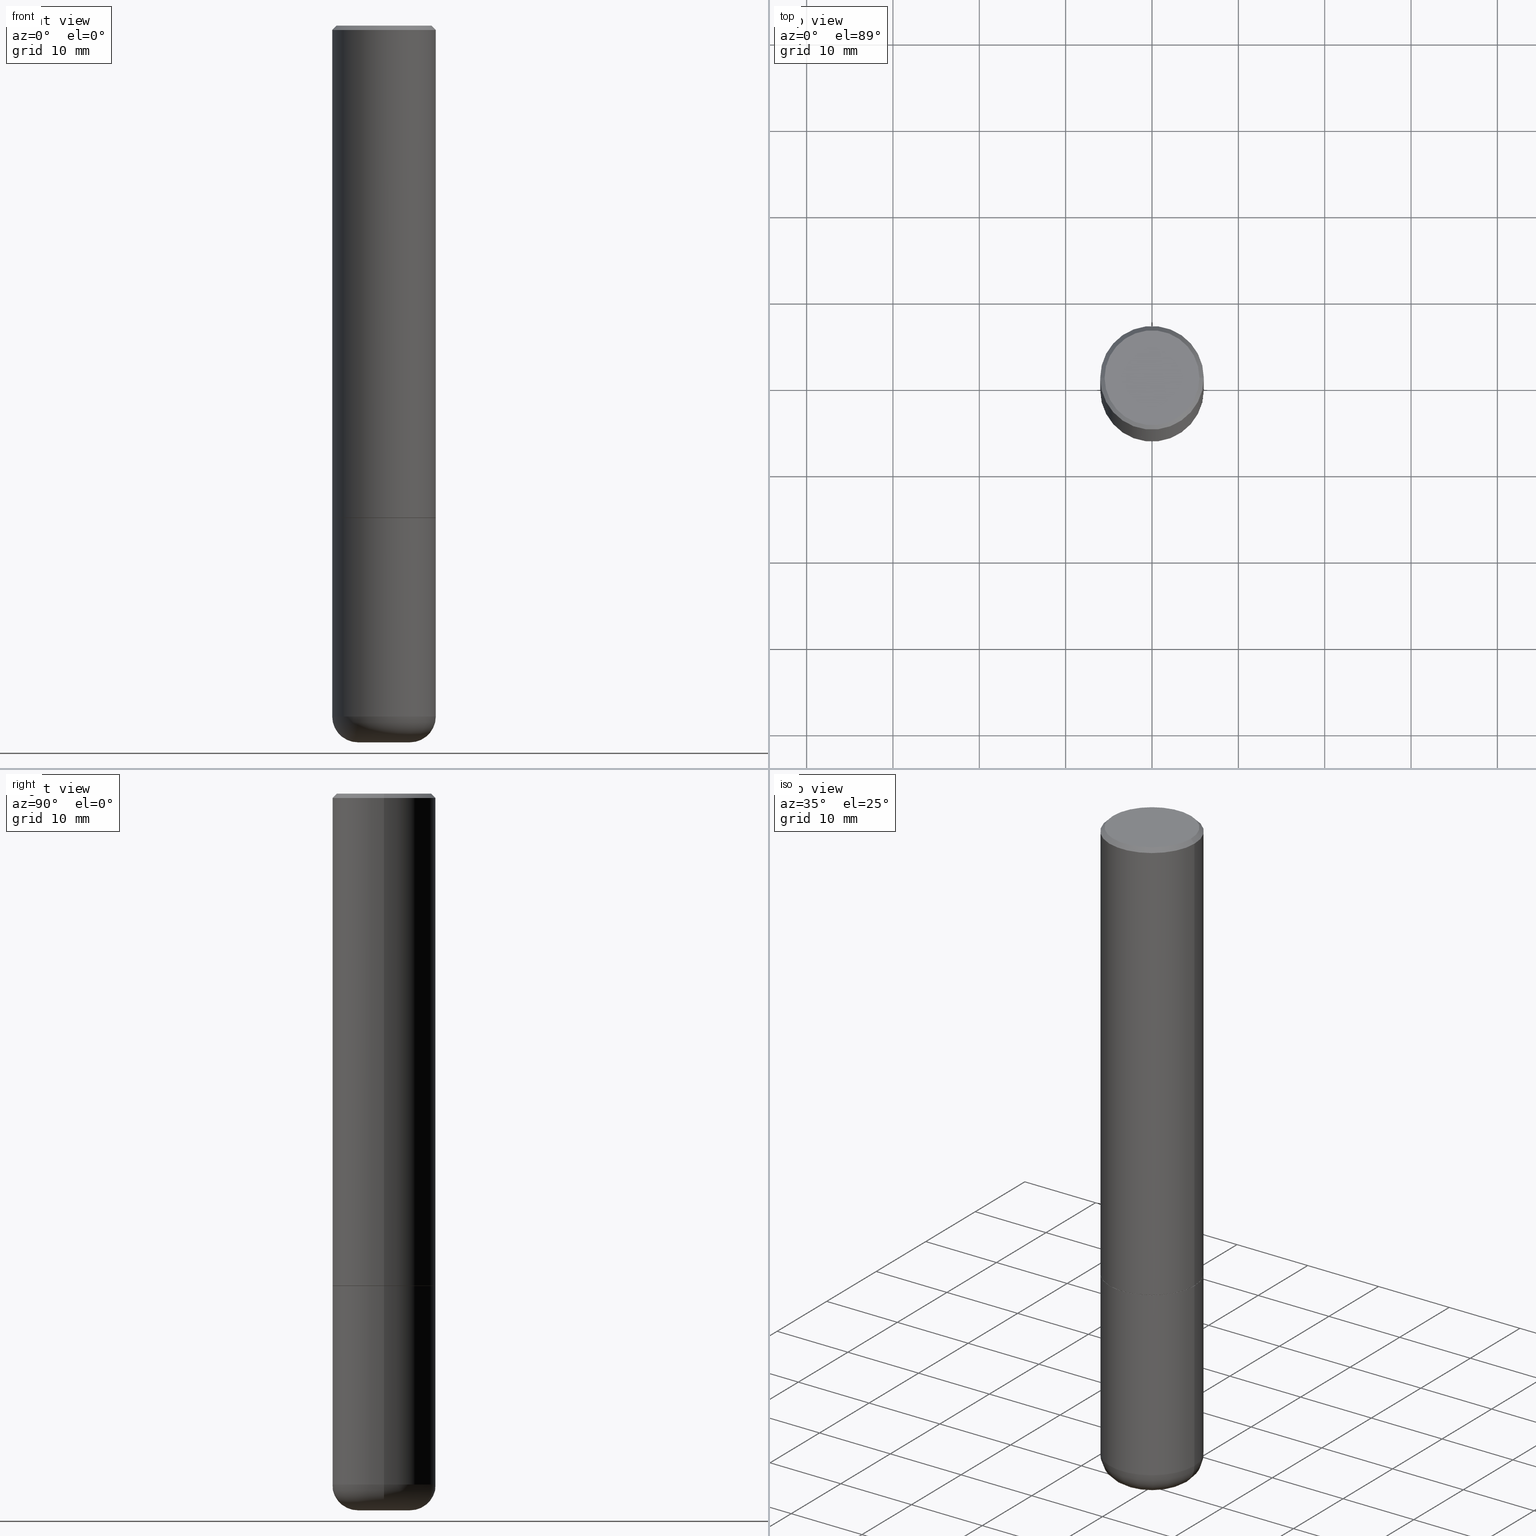
[diagram: canonical four-view strip — front | top / right | iso, engineering-drawing reading convention]
A machine part, canonical four-view strip (front | top / right | iso — engineering-drawing reading convention). The complete STEP part file that produces these views, byte-faithful:
ISO-10303-21;
HEADER;
FILE_DESCRIPTION (( 'STEP AP203' ),
    '1' );
FILE_NAME ('48015.STEP',
    '2024-03-06T19:45:24',
    ( '' ),
    ( '' ),
    'SwSTEP 2.0',
    'SolidWorks 2023',
    '' );
FILE_SCHEMA (( 'CONFIG_CONTROL_DESIGN' ));
ENDSEC;

DATA;
#1 = EDGE_CURVE ( 'NONE', #31, #139, #109, .T. ) ;
#2 = EDGE_LOOP ( 'NONE', ( #64, #72, #201, #124 ) ) ;
#3 = PERSON_AND_ORGANIZATION_ROLE ( 'design_owner' ) ;
#4 = VECTOR ( 'NONE', #347, 39.37007874015748143 ) ;
#5 = CARTESIAN_POINT ( 'NONE',  ( 0.2362000000000000210, -1.264614540928986883E-14, -3.149600000000000399 ) ) ;
#6 = ADVANCED_FACE ( 'NONE', ( #153 ), #406, .T. ) ;
#7 = ORIENTED_EDGE ( 'NONE', *, *, #1, .F. ) ;
#8 = CALENDAR_DATE ( 2024, 6, 3 ) ;
#9 = VERTEX_POINT ( 'NONE', #400 ) ;
#10 = EDGE_LOOP ( 'NONE', ( #332, #41, #320, #132 ) ) ;
#11 = DIRECTION ( 'NONE',  ( 1.000000000000000000, 0.000000000000000000, 0.000000000000000000 ) ) ;
#12 = CC_DESIGN_DATE_AND_TIME_ASSIGNMENT ( #14, #275, ( #196 ) ) ;
#13 = ORIENTED_EDGE ( 'NONE', *, *, #130, .F. ) ;
#14 = DATE_AND_TIME ( #409, #169 ) ;
#15 = DIRECTION ( 'NONE',  ( -1.000000000000000000, 6.982962677686265922E-15, -4.876176775795935793E-29 ) ) ;
#16 = CARTESIAN_POINT ( 'NONE',  ( 0.000000000000000000, 0.000000000000000000, 0.000000000000000000 ) ) ;
#17 = ADVANCED_FACE ( 'NONE', ( #307 ), #244, .T. ) ;
#18 = SECURITY_CLASSIFICATION_LEVEL ( 'unclassified' ) ;
#19 = COORDINATED_UNIVERSAL_TIME_OFFSET ( 5, 0, .BEHIND. ) ;
#20 = ORIENTED_EDGE ( 'NONE', *, *, #69, .T. ) ;
#21 = VECTOR ( 'NONE', #407, 39.37007874015748143 ) ;
#22 = LOCAL_TIME ( 14, 45, 24.00000000000000000, #65 ) ;
#23 = ORIENTED_EDGE ( 'NONE', *, *, #184, .T. ) ;
#24 = CYLINDRICAL_SURFACE ( 'NONE', #326, 0.2362000000000001321 ) ;
#25 = CC_DESIGN_PERSON_AND_ORGANIZATION_ASSIGNMENT ( #175, #376, ( #37 ) ) ;
#26 = PRODUCT_DEFINITION ( 'UNKNOWN', '', #37, #357 ) ;
#27 = CARTESIAN_POINT ( 'NONE',  ( 0.2362000000000002709, -9.481117575628559013E-15, -2.243100000000000094 ) ) ;
#28 = VECTOR ( 'NONE', #293, 39.37007874015748143 ) ;
#29 = APPROVAL_PERSON_ORGANIZATION ( #368, #346, #239 ) ;
#30 = CARTESIAN_POINT ( 'NONE',  ( 0.000000000000000000, 0.000000000000000000, 0.000000000000000000 ) ) ;
#31 = VERTEX_POINT ( 'NONE', #246 ) ;
#32 = CARTESIAN_POINT ( 'NONE',  ( -0.2361999999999999655, 1.579546157692632833E-15, -0.02000000000000005246 ) ) ;
#33 = EDGE_CURVE ( 'NONE', #58, #31, #81, .T. ) ;
#34 = DIRECTION ( 'NONE',  ( 1.000000000000000000, -6.982962677686266711E-15, 0.000000000000000000 ) ) ;
#35 = EDGE_CURVE ( 'NONE', #296, #31, #66, .T. ) ;
#36 = CIRCLE ( 'NONE', #272, 0.2161999999999999478 ) ;
#37 = PRODUCT_DEFINITION_FORMATION_WITH_SPECIFIED_SOURCE ( 'ANY', '', #83, .NOT_KNOWN. ) ;
#38 = COORDINATED_UNIVERSAL_TIME_OFFSET ( 5, 0, .BEHIND. ) ;
#39 = ORIENTED_EDGE ( 'NONE', *, *, #101, .T. ) ;
#40 = CARTESIAN_POINT ( 'NONE',  ( -0.2161999999999999478, 1.544631344304201775E-15, 2.987958743069220160E-17 ) ) ;
#41 = ORIENTED_EDGE ( 'NONE', *, *, #33, .T. ) ;
#42 = PERSON_AND_ORGANIZATION ( #383, #137 ) ;
#43 = VERTEX_POINT ( 'NONE', #310 ) ;
#44 = VECTOR ( 'NONE', #54, 39.37007874015748143 ) ;
#45 = DIRECTION ( 'NONE',  ( 1.000000000000000000, -6.982962677686272233E-15, 0.000000000000000000 ) ) ;
#46 = EDGE_CURVE ( 'NONE', #58, #43, #243, .T. ) ;
#47 = DIRECTION ( 'NONE',  ( -1.000000000000000000, 6.982962677686266711E-15, 0.000000000000000000 ) ) ;
#48 = AXIS2_PLACEMENT_3D ( 'NONE', #105, #176, #47 ) ;
#49 = DIRECTION ( 'NONE',  ( 2.438088387897960049E-29, -3.491481338843145188E-15, -1.000000000000000000 ) ) ;
#50 = CC_DESIGN_PERSON_AND_ORGANIZATION_ASSIGNMENT ( #86, #106, ( #196 ) ) ;
#51 = FACE_OUTER_BOUND ( 'NONE', #328, .T. ) ;
#52 = DIRECTION ( 'NONE',  ( 1.000000000000000000, -6.982962677686269077E-15, 0.000000000000000000 ) ) ;
#53 = AXIS2_PLACEMENT_3D ( 'NONE', #200, #330, #198 ) ;
#54 = DIRECTION ( 'NONE',  ( 0.7071067811867165487, -2.468850131084027659E-15, 0.7071067811863784858 ) ) ;
#55 = APPROVAL ( #140, 'UNSPECIFIED' ) ;
#56 = CALENDAR_DATE ( 2024, 6, 3 ) ;
#57 = FACE_OUTER_BOUND ( 'NONE', #361, .T. ) ;
#58 = VERTEX_POINT ( 'NONE', #398 ) ;
#59 = CARTESIAN_POINT ( 'NONE',  ( 7.991058417971171713E-29, -1.140911357093774644E-14, -3.267700000000000049 ) ) ;
#60 = AXIS2_PLACEMENT_3D ( 'NONE', #245, #372, #276 ) ;
#61 = DIRECTION ( 'NONE',  ( -2.445468806185136877E-29, 3.491481338843145188E-15, 1.000000000000000000 ) ) ;
#62 = ADVANCED_FACE ( 'NONE', ( #108 ), #241, .F. ) ;
#63 = CARTESIAN_POINT ( 'NONE',  ( 7.702248551960706711E-29, -1.099676962482037231E-14, -3.149600000000000399 ) ) ;
#64 = ORIENTED_EDGE ( 'NONE', *, *, #35, .T. ) ;
#65 = COORDINATED_UNIVERSAL_TIME_OFFSET ( 5, 0, .BEHIND. ) ;
#66 = CIRCLE ( 'NONE', #338, 0.2362000000000002709 ) ;
#67 = CYLINDRICAL_SURFACE ( 'NONE', #143, 0.2361999999999999933 ) ;
#68 = DIRECTION ( 'NONE',  ( -6.982962677686266711E-15, -1.000000000000000000, 3.491481338843145583E-15 ) ) ;
#69 = EDGE_CURVE ( 'NONE', #323, #171, #360, .T. ) ;
#70 = CALENDAR_DATE ( 2024, 6, 3 ) ;
#71 = ADVANCED_FACE ( 'NONE', ( #337 ), #136, .T. ) ;
#72 = ORIENTED_EDGE ( 'NONE', *, *, #1, .T. ) ;
#73 = ORIENTED_EDGE ( 'NONE', *, *, #110, .T. ) ;
#74 = ORIENTED_EDGE ( 'NONE', *, *, #46, .F. ) ;
#75 = CARTESIAN_POINT ( 'NONE',  ( -0.2362000000000000210, -9.318467682955017493E-15, -3.149600000000000399 ) ) ;
#76 = ORIENTED_EDGE ( 'NONE', *, *, #286, .F. ) ;
#77 = CARTESIAN_POINT ( 'NONE',  ( 5.487876547960065873E-29, -7.835233272497903917E-15, -2.244100000000000428 ) ) ;
#78 = CARTESIAN_POINT ( 'NONE',  ( 5.487876547960065873E-29, -7.835233272497903917E-15, -2.244100000000000428 ) ) ;
#79 = CARTESIAN_POINT ( 'NONE',  ( -7.306959900346538153E-46, 1.043240219266313067E-31, 2.987958743070287587E-17 ) ) ;
#80 = CIRCLE ( 'NONE', #318, 0.2362000000000002709 ) ;
#81 = LINE ( 'NONE', #214, #324 ) ;
#82 = CARTESIAN_POINT ( 'NONE',  ( -0.2362000000000001321, 1.678301941865357577E-15, -1.161852468318209457E-29 ) ) ;
#83 = PRODUCT ( '48015', '48015', '', ( #352 ) ) ;
#84 = TOROIDAL_SURFACE ( 'NONE', #298, 0.1180999999999999966, 0.1181000000000000383 ) ;
#85 = LOCAL_TIME ( 14, 45, 24.00000000000000000, #19 ) ;
#86 = PERSON_AND_ORGANIZATION ( #383, #137 ) ;
#87 = DIRECTION ( 'NONE',  ( -2.445468806185136597E-29, 3.491481338843145583E-15, 1.000000000000000000 ) ) ;
#88 = FACE_OUTER_BOUND ( 'NONE', #254, .T. ) ;
#89 = FACE_OUTER_BOUND ( 'NONE', #10, .T. ) ;
#90 = DIRECTION ( 'NONE',  ( -2.445468806185136597E-29, 3.491481338843145583E-15, 1.000000000000000000 ) ) ;
#91 = AXIS2_PLACEMENT_3D ( 'NONE', #59, #191, #217 ) ;
#92 = CARTESIAN_POINT ( 'NONE',  ( 0.2361999999999999655, -1.690279253850498574E-15, -0.02000000000000005246 ) ) ;
#93 = PERSON_AND_ORGANIZATION_ROLE ( 'creator' ) ;
#94 = EDGE_LOOP ( 'NONE', ( #151, #225, #269, #76 ) ) ;
#95 =( NAMED_UNIT ( * ) PLANE_ANGLE_UNIT ( ) SI_UNIT ( $, .RADIAN. ) );
#96 = PERSON_AND_ORGANIZATION ( #383, #137 ) ;
#97 = ORIENTED_EDGE ( 'NONE', *, *, #127, .T. ) ;
#98 = CC_DESIGN_PERSON_AND_ORGANIZATION_ASSIGNMENT ( #119, #150, ( #37 ) ) ;
#99 = APPROVAL_DATE_TIME ( #394, #55 ) ;
#100 = EDGE_LOOP ( 'NONE', ( #39, #134, #206, #317 ) ) ;
#101 = EDGE_CURVE ( 'NONE', #388, #131, #234, .T. ) ;
#102 = CLOSED_SHELL ( 'NONE', ( #292, #340, #71, #209, #6, #205, #382, #62 ) ) ;
#103 = APPROVAL_PERSON_ORGANIZATION ( #96, #55, #358 ) ;
#104 = DIRECTION ( 'NONE',  ( 7.105427357601001859E-15, 1.000000000000000000, -3.491481338843145583E-15 ) ) ;
#105 = CARTESIAN_POINT ( 'NONE',  ( 4.890937612370285420E-31, -6.982962677686308865E-17, -0.02000000000000005246 ) ) ;
#106 = PERSON_AND_ORGANIZATION_ROLE ( 'classification_officer' ) ;
#107 = CARTESIAN_POINT ( 'NONE',  ( 7.702248551960706711E-29, -1.099676962482037231E-14, -3.149600000000000399 ) ) ;
#108 = FACE_OUTER_BOUND ( 'NONE', #187, .T. ) ;
#109 = LINE ( 'NONE', #82, #415 ) ;
#110 = EDGE_CURVE ( 'NONE', #395, #230, #161, .T. ) ;
#111 = EDGE_CURVE ( 'NONE', #171, #323, #118, .T. ) ;
#112 = CIRCLE ( 'NONE', #221, 0.2362000000000000210 ) ;
#113 = DIRECTION ( 'NONE',  ( -2.445468806185136597E-29, 3.491481338843145583E-15, 1.000000000000000000 ) ) ;
#114 = ORIENTED_EDGE ( 'NONE', *, *, #315, .F. ) ;
#115 = DIRECTION ( 'NONE',  ( -1.000000000000000000, 6.982962677686265922E-15, -4.876176775795935793E-29 ) ) ;
#116 = ADVANCED_FACE ( 'NONE', ( #51 ), #179, .F. ) ;
#117 = CARTESIAN_POINT ( 'NONE',  ( 0.2161999999999999478, -1.586759460484351396E-15, 2.987958743071370422E-17 ) ) ;
#118 = CIRCLE ( 'NONE', #279, 0.2361999999999999933 ) ;
#119 = PERSON_AND_ORGANIZATION ( #383, #137 ) ;
#120 = DIRECTION ( 'NONE',  ( -2.445468806185136597E-29, 3.491481338843145583E-15, 1.000000000000000000 ) ) ;
#121 = VERTEX_POINT ( 'NONE', #183 ) ;
#122 = CARTESIAN_POINT ( 'NONE',  ( 5.487876547960064752E-29, -7.835233272497902340E-15, -2.244099999999999984 ) ) ;
#123 = APPROVAL ( #392, 'UNSPECIFIED' ) ;
#124 = ORIENTED_EDGE ( 'NONE', *, *, #274, .F. ) ;
#125 = DIRECTION ( 'NONE',  ( -2.445468806185136597E-29, 3.491481338843145583E-15, 1.000000000000000000 ) ) ;
#126 = AXIS2_PLACEMENT_3D ( 'NONE', #374, #180, #364 ) ;
#127 = EDGE_CURVE ( 'NONE', #204, #131, #216, .T. ) ;
#128 = CARTESIAN_POINT ( 'NONE',  ( 0.2351999999999999924, -9.477626094289712851E-15, -2.244099999999999984 ) ) ;
#129 = PERSON_AND_ORGANIZATION ( #383, #137 ) ;
#130 = EDGE_CURVE ( 'NONE', #121, #204, #152, .T. ) ;
#131 = VERTEX_POINT ( 'NONE', #75 ) ;
#132 = ORIENTED_EDGE ( 'NONE', *, *, #373, .F. ) ;
#133 =( NAMED_UNIT ( * ) SI_UNIT ( $, .STERADIAN. ) SOLID_ANGLE_UNIT ( ) );
#134 = ORIENTED_EDGE ( 'NONE', *, *, #219, .T. ) ;
#135 = AXIS2_PLACEMENT_3D ( 'NONE', #210, #362, #208 ) ;
#136 = CONICAL_SURFACE ( 'NONE', #48, 0.2361999999999999655, 0.7853981633974469467 ) ;
#137 = ORGANIZATION ( 'UNSPECIFIED', 'UNSPECIFIED', '' ) ;
#138 = ADVANCED_BREP_SHAPE_REPRESENTATION ( '48015', ( #412, #282, #391 ), #371 ) ;
#139 = VERTEX_POINT ( 'NONE', #207 ) ;
#140 = APPROVAL_STATUS ( 'not_yet_approved' ) ;
#141 = APPLICATION_PROTOCOL_DEFINITION ( 'international standard', 'config_control_design', 1994, #235 ) ;
#142 = ORIENTED_EDGE ( 'NONE', *, *, #343, .T. ) ;
#143 = AXIS2_PLACEMENT_3D ( 'NONE', #197, #329, #215 ) ;
#144 = AXIS2_PLACEMENT_3D ( 'NONE', #390, #68, #294 ) ;
#145 = CARTESIAN_POINT ( 'NONE',  ( -0.1180999999999999966, -1.015761865388769332E-14, -3.149600000000000399 ) ) ;
#146 = DIRECTION ( 'NONE',  ( 1.000000000000000000, -6.982962677686269077E-15, 0.000000000000000000 ) ) ;
#147 = CARTESIAN_POINT ( 'NONE',  ( 5.485431079153880270E-29, -7.831741791159060910E-15, -2.243100000000000094 ) ) ;
#148 = COORDINATED_UNIVERSAL_TIME_OFFSET ( 5, 0, .BEHIND. ) ;
#149 = PRODUCT_DEFINITION_SHAPE ( 'NONE', 'NONE',  #26 ) ;
#150 = PERSON_AND_ORGANIZATION_ROLE ( 'creator' ) ;
#151 = ORIENTED_EDGE ( 'NONE', *, *, #33, .F. ) ;
#152 = CIRCLE ( 'NONE', #348, 0.1181000000000000105 ) ;
#153 = FACE_OUTER_BOUND ( 'NONE', #172, .T. ) ;
#154 = DIRECTION ( 'NONE',  ( -2.438088387897960049E-29, 3.491481338843145188E-15, 1.000000000000000000 ) ) ;
#155 = LINE ( 'NONE', #32, #4 ) ;
#156 = AXIS2_PLACEMENT_3D ( 'NONE', #411, #289, #259 ) ;
#157 = CIRCLE ( 'NONE', #144, 0.1181000000000000383 ) ;
#158 = CARTESIAN_POINT ( 'NONE',  ( 5.487876547960065873E-29, -7.835233272497903917E-15, -2.244100000000000428 ) ) ;
#159 = CARTESIAN_POINT ( 'NONE',  ( 5.487876547960064752E-29, -7.835233272497902340E-15, -2.244099999999999984 ) ) ;
#160 = DIRECTION ( 'NONE',  ( -2.445468806185136597E-29, 3.491481338843145583E-15, 1.000000000000000000 ) ) ;
#161 = CIRCLE ( 'NONE', #135, 0.2161999999999999478 ) ;
#162 = CIRCLE ( 'NONE', #223, 0.2361999999999999655 ) ;
#163 = ORIENTED_EDGE ( 'NONE', *, *, #111, .F. ) ;
#164 = ORIENTED_EDGE ( 'NONE', *, *, #181, .T. ) ;
#165 =( CONVERSION_BASED_UNIT ( 'INCH', #232 ) LENGTH_UNIT ( ) NAMED_UNIT ( #397 ) );
#166 = EDGE_LOOP ( 'NONE', ( #393, #74 ) ) ;
#167 = DATE_AND_TIME ( #301, #22 ) ;
#168 = CONICAL_SURFACE ( 'NONE', #403, 0.2351999999999999924, 0.7853981633976873100 ) ;
#169 = LOCAL_TIME ( 14, 45, 24.00000000000000000, #148 ) ;
#170 = ORIENTED_EDGE ( 'NONE', *, *, #130, .T. ) ;
#171 = VERTEX_POINT ( 'NONE', #402 ) ;
#172 = EDGE_LOOP ( 'NONE', ( #7, #379, #193, #227 ) ) ;
#173 = DIRECTION ( 'NONE',  ( 1.000000000000000000, -6.982962677686265922E-15, 4.876176775795935793E-29 ) ) ;
#174 = ORIENTED_EDGE ( 'NONE', *, *, #309, .T. ) ;
#175 = PERSON_AND_ORGANIZATION ( #383, #137 ) ;
#176 = DIRECTION ( 'NONE',  ( 2.445468806185136597E-29, -3.491481338843145583E-15, -1.000000000000000000 ) ) ;
#177 = AXIS2_PLACEMENT_3D ( 'NONE', #78, #238, #146 ) ;
#178 = CC_DESIGN_DATE_AND_TIME_ASSIGNMENT ( #167, #297, ( #26 ) ) ;
#179 = PLANE ( 'NONE',  #408 ) ;
#180 = DIRECTION ( 'NONE',  ( -2.445468806185136597E-29, 3.491481338843145583E-15, 1.000000000000000000 ) ) ;
#181 = EDGE_CURVE ( 'NONE', #230, #395, #36, .T. ) ;
#182 = CLOSED_SHELL ( 'NONE', ( #17, #194, #116, #192, #418, #336 ) ) ;
#183 = CARTESIAN_POINT ( 'NONE',  ( 0.1181000000000000105, -1.223380146317249628E-14, -3.267700000000000049 ) ) ;
#184 = EDGE_CURVE ( 'NONE', #9, #139, #370, .T. ) ;
#185 = ORIENTED_EDGE ( 'NONE', *, *, #266, .T. ) ;
#186 = PLANE ( 'NONE',  #396 ) ;
#187 = EDGE_LOOP ( 'NONE', ( #73, #164 ) ) ;
#188 = FACE_OUTER_BOUND ( 'NONE', #166, .T. ) ;
#189 = CC_DESIGN_APPROVAL ( #55, ( #37 ) ) ;
#190 = FACE_OUTER_BOUND ( 'NONE', #94, .T. ) ;
#191 = DIRECTION ( 'NONE',  ( 2.438088387897960049E-29, -3.491481338843145188E-15, -1.000000000000000000 ) ) ;
#192 = ADVANCED_FACE ( 'NONE', ( #258 ), #67, .T. ) ;
#193 = ORIENTED_EDGE ( 'NONE', *, *, #274, .T. ) ;
#194 = ADVANCED_FACE ( 'NONE', ( #313 ), #84, .T. ) ;
#195 = AXIS2_PLACEMENT_3D ( 'NONE', #291, #120, #316 ) ;
#196 = SECURITY_CLASSIFICATION ( '', '', #18 ) ;
#197 = CARTESIAN_POINT ( 'NONE',  ( 0.000000000000000000, 0.000000000000000000, 0.000000000000000000 ) ) ;
#198 = DIRECTION ( 'NONE',  ( 1.000000000000000000, -6.982962677686263555E-15, 4.883557194083111780E-29 ) ) ;
#199 = EDGE_LOOP ( 'NONE', ( #170, #97, #261, #247 ) ) ;
#200 = CARTESIAN_POINT ( 'NONE',  ( 7.702248551960706711E-29, -1.099676962482037231E-14, -3.149600000000000399 ) ) ;
#201 = ORIENTED_EDGE ( 'NONE', *, *, #184, .F. ) ;
#202 = DATE_AND_TIME ( #70, #416 ) ;
#203 = AXIS2_PLACEMENT_3D ( 'NONE', #16, #405, #280 ) ;
#204 = VERTEX_POINT ( 'NONE', #220 ) ;
#205 = ADVANCED_FACE ( 'NONE', ( #190 ), #375, .T. ) ;
#206 = ORIENTED_EDGE ( 'NONE', *, *, #69, .F. ) ;
#207 = CARTESIAN_POINT ( 'NONE',  ( -0.2361999999999999655, 1.579546157692632833E-15, -0.02000000000000005246 ) ) ;
#208 = DIRECTION ( 'NONE',  ( 1.000000000000000000, -6.982962677686266711E-15, 4.876655451117826644E-29 ) ) ;
#209 = ADVANCED_FACE ( 'NONE', ( #57 ), #353, .T. ) ;
#210 = CARTESIAN_POINT ( 'NONE',  ( -7.306959900346538153E-46, 1.043240219266313067E-31, 2.987958743070287587E-17 ) ) ;
#211 = DIRECTION ( 'NONE',  ( 1.000000000000000000, -6.982962677686266711E-15, 4.876176775795936353E-29 ) ) ;
#212 = AXIS2_PLACEMENT_3D ( 'NONE', #159, #314, #319 ) ;
#213 = LOCAL_TIME ( 14, 45, 24.00000000000000000, #38 ) ;
#214 = CARTESIAN_POINT ( 'NONE',  ( -0.2351999999999999924, -6.164036757990146954E-15, -2.244099999999999984 ) ) ;
#215 = DIRECTION ( 'NONE',  ( 1.000000000000000000, -6.982962677686266711E-15, 4.876176775795936353E-29 ) ) ;
#216 = CIRCLE ( 'NONE', #302, 0.1181000000000000383 ) ;
#217 = DIRECTION ( 'NONE',  ( -1.000000000000000000, 6.982962677686265922E-15, -4.876176775795935793E-29 ) ) ;
#218 = DIRECTION ( 'NONE',  ( -2.445468806185136597E-29, 3.491481338843145583E-15, 1.000000000000000000 ) ) ;
#219 = EDGE_CURVE ( 'NONE', #131, #171, #384, .T. ) ;
#220 = CARTESIAN_POINT ( 'NONE',  ( -0.1181000000000000383, -9.944215141480041685E-15, -3.267700000000000049 ) ) ;
#221 = AXIS2_PLACEMENT_3D ( 'NONE', #222, #218, #410 ) ;
#222 = CARTESIAN_POINT ( 'NONE',  ( 7.702248551960706711E-29, -1.099676962482037231E-14, -3.149600000000000399 ) ) ;
#223 = AXIS2_PLACEMENT_3D ( 'NONE', #322, #160, #34 ) ;
#224 = LINE ( 'NONE', #381, #264 ) ;
#225 = ORIENTED_EDGE ( 'NONE', *, *, #46, .T. ) ;
#226 = CARTESIAN_POINT ( 'NONE',  ( 0.000000000000000000, 0.000000000000000000, 0.000000000000000000 ) ) ;
#227 = ORIENTED_EDGE ( 'NONE', *, *, #343, .F. ) ;
#228 = DIRECTION ( 'NONE',  ( 0.000000000000000000, 0.000000000000000000, 1.000000000000000000 ) ) ;
#229 = AXIS2_PLACEMENT_3D ( 'NONE', #367, #49, #15 ) ;
#230 = VERTEX_POINT ( 'NONE', #117 ) ;
#231 = APPROVAL_DATE_TIME ( #202, #123 ) ;
#232 = LENGTH_MEASURE_WITH_UNIT ( LENGTH_MEASURE( 0.02539999999999999897 ), #268 );
#233 = ORIENTED_EDGE ( 'NONE', *, *, #399, .T. ) ;
#234 = CIRCLE ( 'NONE', #342, 0.2362000000000000210 ) ;
#235 = APPLICATION_CONTEXT ( 'configuration controlled 3d designs of mechanical parts and assemblies' ) ;
#236 = DIRECTION ( 'NONE',  ( -1.000000000000000000, 7.105427357601001859E-15, 0.000000000000000000 ) ) ;
#237 = DATE_AND_TIME ( #56, #85 ) ;
#238 = DIRECTION ( 'NONE',  ( -2.445468806185136597E-29, 3.491481338843145583E-15, 1.000000000000000000 ) ) ;
#239 = APPROVAL_ROLE ( '' ) ;
#240 = DIRECTION ( 'NONE',  ( 1.000000000000000000, -6.982962677686264344E-15, 0.000000000000000000 ) ) ;
#241 = PLANE ( 'NONE',  #229 ) ;
#242 = CARTESIAN_POINT ( 'NONE',  ( 7.991058417971171713E-29, -1.140911357093774644E-14, -3.267700000000000049 ) ) ;
#243 = CIRCLE ( 'NONE', #126, 0.2351999999999999924 ) ;
#244 = CYLINDRICAL_SURFACE ( 'NONE', #203, 0.2361999999999999933 ) ;
#245 = CARTESIAN_POINT ( 'NONE',  ( 4.890937612370285420E-31, -6.982962677686308865E-17, -0.02000000000000005246 ) ) ;
#246 = CARTESIAN_POINT ( 'NONE',  ( -0.2362000000000002986, -2.272483767102600582E-15, -2.243100000000000094 ) ) ;
#247 = ORIENTED_EDGE ( 'NONE', *, *, #399, .F. ) ;
#248 = CC_DESIGN_PERSON_AND_ORGANIZATION_ASSIGNMENT ( #42, #93, ( #26 ) ) ;
#249 = CARTESIAN_POINT ( 'NONE',  ( 0.000000000000000000, 0.000000000000000000, 0.000000000000000000 ) ) ;
#250 = AXIS2_PLACEMENT_3D ( 'NONE', #249, #303, #211 ) ;
#251 = LINE ( 'NONE', #92, #28 ) ;
#252 = APPROVAL_STATUS ( 'not_yet_approved' ) ;
#253 = DIRECTION ( 'NONE',  ( 1.000000000000000000, -6.982962677686263555E-15, 4.883557194083111780E-29 ) ) ;
#254 = EDGE_LOOP ( 'NONE', ( #13, #380 ) ) ;
#255 = CARTESIAN_POINT ( 'NONE',  ( 5.485431079153880270E-29, -7.831741791159060910E-15, -2.243100000000000094 ) ) ;
#256 = VECTOR ( 'NONE', #61, 39.37007874015748143 ) ;
#257 = DIRECTION ( 'NONE',  ( -2.445468806185136597E-29, 3.491481338843145583E-15, 1.000000000000000000 ) ) ;
#258 = FACE_OUTER_BOUND ( 'NONE', #331, .T. ) ;
#259 = DIRECTION ( 'NONE',  ( -1.000000000000000000, 6.982962677686266711E-15, 0.000000000000000000 ) ) ;
#260 = COORDINATED_UNIVERSAL_TIME_OFFSET ( 5, 0, .BEHIND. ) ;
#261 = ORIENTED_EDGE ( 'NONE', *, *, #101, .F. ) ;
#262 = APPLICATION_PROTOCOL_DEFINITION ( 'international standard', 'config_control_design', 1994, #283 ) ;
#263 = EDGE_CURVE ( 'NONE', #43, #58, #389, .T. ) ;
#264 = VECTOR ( 'NONE', #414, 39.37007874015748143 ) ;
#265 = CC_DESIGN_APPROVAL ( #346, ( #196 ) ) ;
#266 = EDGE_CURVE ( 'NONE', #230, #9, #251, .T. ) ;
#267 = ORIENTED_EDGE ( 'NONE', *, *, #285, .T. ) ;
#268 =( LENGTH_UNIT ( ) NAMED_UNIT ( * ) SI_UNIT ( $, .METRE. ) );
#269 = ORIENTED_EDGE ( 'NONE', *, *, #373, .T. ) ;
#270 = APPROVAL_ROLE ( '' ) ;
#271 = EDGE_LOOP ( 'NONE', ( #351, #185, #23, #114 ) ) ;
#272 = AXIS2_PLACEMENT_3D ( 'NONE', #79, #113, #369 ) ;
#273 = AXIS2_PLACEMENT_3D ( 'NONE', #354, #356, #45 ) ;
#274 = EDGE_CURVE ( 'NONE', #296, #9, #224, .T. ) ;
#275 = DATE_TIME_ROLE ( 'classification_date' ) ;
#276 = DIRECTION ( 'NONE',  ( 1.000000000000000000, -6.982962677686266711E-15, 0.000000000000000000 ) ) ;
#277 = DIRECTION ( 'NONE',  ( 1.000000000000000000, -6.982962677686269077E-15, 0.000000000000000000 ) ) ;
#278 = CARTESIAN_POINT ( 'NONE',  ( 5.487876547960065873E-29, -7.835233272497903917E-15, -2.244100000000000428 ) ) ;
#279 = AXIS2_PLACEMENT_3D ( 'NONE', #77, #87, #277 ) ;
#280 = DIRECTION ( 'NONE',  ( 1.000000000000000000, -6.982962677686266711E-15, 4.876176775795936353E-29 ) ) ;
#281 = CC_DESIGN_SECURITY_CLASSIFICATION ( #196, ( #37 ) ) ;
#282 = MANIFOLD_SOLID_BREP ( 'Body-Move/Copy2[2]', #102 ) ;
#283 = APPLICATION_CONTEXT ( 'configuration controlled 3d designs of mechanical parts and assemblies' ) ;
#284 = CARTESIAN_POINT ( 'NONE',  ( -0.2361999999999999933, 1.678301941865356591E-15, -1.161852468318208757E-29 ) ) ;
#285 = EDGE_CURVE ( 'NONE', #388, #323, #321, .T. ) ;
#286 = EDGE_CURVE ( 'NONE', #31, #296, #80, .T. ) ;
#287 = CIRCLE ( 'NONE', #273, 0.1181000000000000105 ) ;
#288 = DIRECTION ( 'NONE',  ( -2.445468806185136597E-29, 3.491481338843145583E-15, 1.000000000000000000 ) ) ;
#289 = DIRECTION ( 'NONE',  ( 2.445468806185136597E-29, -3.491481338843145583E-15, -1.000000000000000000 ) ) ;
#290 = ORIENTED_EDGE ( 'NONE', *, *, #386, .T. ) ;
#291 = CARTESIAN_POINT ( 'NONE',  ( 5.487876547960064752E-29, -7.835233272497902340E-15, -2.244099999999999984 ) ) ;
#292 = ADVANCED_FACE ( 'NONE', ( #89 ), #168, .T. ) ;
#293 = DIRECTION ( 'NONE',  ( 0.7071067811865465735, -7.319954787623252890E-15, -0.7071067811865484609 ) ) ;
#294 = DIRECTION ( 'NONE',  ( 1.000000000000000000, -6.982962677686270655E-15, 0.000000000000000000 ) ) ;
#295 = ORIENTED_EDGE ( 'NONE', *, *, #110, .F. ) ;
#296 = VERTEX_POINT ( 'NONE', #27 ) ;
#297 = DATE_TIME_ROLE ( 'creation_date' ) ;
#298 = AXIS2_PLACEMENT_3D ( 'NONE', #63, #257, #253 ) ;
#299 = ORIENTED_EDGE ( 'NONE', *, *, #127, .F. ) ;
#300 = ORIENTED_EDGE ( 'NONE', *, *, #309, .F. ) ;
#301 = CALENDAR_DATE ( 2024, 6, 3 ) ;
#302 = AXIS2_PLACEMENT_3D ( 'NONE', #145, #104, #236 ) ;
#303 = DIRECTION ( 'NONE',  ( -2.445468806185136597E-29, 3.491481338843145583E-15, 1.000000000000000000 ) ) ;
#304 = APPROVAL_DATE_TIME ( #237, #346 ) ;
#305 = DIRECTION ( 'NONE',  ( -2.445468806185136597E-29, 3.491481338843145583E-15, 1.000000000000000000 ) ) ;
#306 = DIRECTION ( 'NONE',  ( -2.445468806185136597E-29, 3.491481338843145583E-15, 1.000000000000000000 ) ) ;
#307 = FACE_OUTER_BOUND ( 'NONE', #100, .T. ) ;
#308 = DIRECTION ( 'NONE',  ( 2.438088387897960049E-29, -3.491481338843145188E-15, -1.000000000000000000 ) ) ;
#309 = EDGE_CURVE ( 'NONE', #131, #388, #112, .T. ) ;
#310 = CARTESIAN_POINT ( 'NONE',  ( 0.2351999999999999924, -9.477626094289712851E-15, -2.244099999999999984 ) ) ;
#311 = CC_DESIGN_APPROVAL ( #123, ( #26 ) ) ;
#312 = DIRECTION ( 'NONE',  ( -2.445468806185136877E-29, 3.491481338843145188E-15, 1.000000000000000000 ) ) ;
#313 = FACE_OUTER_BOUND ( 'NONE', #199, .T. ) ;
#314 = DIRECTION ( 'NONE',  ( -2.445468806185136597E-29, 3.491481338843145583E-15, 1.000000000000000000 ) ) ;
#315 = EDGE_CURVE ( 'NONE', #395, #139, #155, .T. ) ;
#316 = DIRECTION ( 'NONE',  ( 1.000000000000000000, -6.982962677686268288E-15, 0.000000000000000000 ) ) ;
#317 = ORIENTED_EDGE ( 'NONE', *, *, #285, .F. ) ;
#318 = AXIS2_PLACEMENT_3D ( 'NONE', #255, #125, #378 ) ;
#319 = DIRECTION ( 'NONE',  ( 1.000000000000000000, -6.982962677686268288E-15, 0.000000000000000000 ) ) ;
#320 = ORIENTED_EDGE ( 'NONE', *, *, #35, .F. ) ;
#321 = LINE ( 'NONE', #349, #256 ) ;
#322 = CARTESIAN_POINT ( 'NONE',  ( 4.890937612370285420E-31, -6.982962677686308865E-17, -0.02000000000000005246 ) ) ;
#323 = VERTEX_POINT ( 'NONE', #377 ) ;
#324 = VECTOR ( 'NONE', #339, 39.37007874015748143 ) ;
#325 = PERSON_AND_ORGANIZATION ( #383, #137 ) ;
#326 = AXIS2_PLACEMENT_3D ( 'NONE', #30, #288, #345 ) ;
#327 = CC_DESIGN_PERSON_AND_ORGANIZATION_ASSIGNMENT ( #129, #3, ( #83 ) ) ;
#328 = EDGE_LOOP ( 'NONE', ( #20, #363 ) ) ;
#329 = DIRECTION ( 'NONE',  ( -2.445468806185136597E-29, 3.491481338843145583E-15, 1.000000000000000000 ) ) ;
#330 = DIRECTION ( 'NONE',  ( -2.445468806185136597E-29, 3.491481338843145583E-15, 1.000000000000000000 ) ) ;
#331 = EDGE_LOOP ( 'NONE', ( #355, #174, #267, #163 ) ) ;
#332 = ORIENTED_EDGE ( 'NONE', *, *, #263, .T. ) ;
#333 = ORIENTED_EDGE ( 'NONE', *, *, #315, .T. ) ;
#334 = TOROIDAL_SURFACE ( 'NONE', #53, 0.1180999999999999966, 0.1181000000000000383 ) ;
#335 = UNCERTAINTY_MEASURE_WITH_UNIT (LENGTH_MEASURE( 1.000000000000000082E-05 ), #165, 'distance_accuracy_value', 'NONE');
#336 = ADVANCED_FACE ( 'NONE', ( #88 ), #350, .T. ) ;
#337 = FACE_OUTER_BOUND ( 'NONE', #271, .T. ) ;
#338 = AXIS2_PLACEMENT_3D ( 'NONE', #147, #341, #52 ) ;
#339 = DIRECTION ( 'NONE',  ( -0.7071067811867165487, 7.493145998870964739E-15, 0.7071067811863784858 ) ) ;
#340 = ADVANCED_FACE ( 'NONE', ( #344 ), #24, .T. ) ;
#341 = DIRECTION ( 'NONE',  ( -2.445468806185136597E-29, 3.491481338843145583E-15, 1.000000000000000000 ) ) ;
#342 = AXIS2_PLACEMENT_3D ( 'NONE', #107, #305, #240 ) ;
#343 = EDGE_CURVE ( 'NONE', #139, #9, #162, .T. ) ;
#344 = FACE_OUTER_BOUND ( 'NONE', #2, .T. ) ;
#345 = DIRECTION ( 'NONE',  ( 1.000000000000000000, -6.982962677686266711E-15, 4.876176775795936353E-29 ) ) ;
#346 = APPROVAL ( #252, 'UNSPECIFIED' ) ;
#347 = DIRECTION ( 'NONE',  ( -0.7071067811865465735, 2.468850131082246805E-15, -0.7071067811865484609 ) ) ;
#348 = AXIS2_PLACEMENT_3D ( 'NONE', #242, #306, #401 ) ;
#349 = CARTESIAN_POINT ( 'NONE',  ( 0.2361999999999999933, -1.649375784469496131E-15, 1.151752954443000088E-29 ) ) ;
#350 = PLANE ( 'NONE',  #91 ) ;
#351 = ORIENTED_EDGE ( 'NONE', *, *, #181, .F. ) ;
#352 = MECHANICAL_CONTEXT ( 'NONE', #235, 'mechanical' ) ;
#353 = CONICAL_SURFACE ( 'NONE', #156, 0.2361999999999999655, 0.7853981633974469467 ) ;
#354 = CARTESIAN_POINT ( 'NONE',  ( 7.991058417971171713E-29, -1.140911357093774644E-14, -3.267700000000000049 ) ) ;
#355 = ORIENTED_EDGE ( 'NONE', *, *, #219, .F. ) ;
#356 = DIRECTION ( 'NONE',  ( -2.445468806185136597E-29, 3.491481338843145583E-15, 1.000000000000000000 ) ) ;
#357 = DESIGN_CONTEXT ( 'detailed design', #283, 'design' ) ;
#358 = APPROVAL_ROLE ( '' ) ;
#359 = ORIENTED_EDGE ( 'NONE', *, *, #266, .F. ) ;
#360 = CIRCLE ( 'NONE', #177, 0.2361999999999999933 ) ;
#361 = EDGE_LOOP ( 'NONE', ( #359, #295, #333, #142 ) ) ;
#362 = DIRECTION ( 'NONE',  ( -2.445468806185136597E-29, 3.491481338843145583E-15, 1.000000000000000000 ) ) ;
#363 = ORIENTED_EDGE ( 'NONE', *, *, #111, .T. ) ;
#364 = DIRECTION ( 'NONE',  ( 1.000000000000000000, -6.982962677686268288E-15, 0.000000000000000000 ) ) ;
#365 = SHAPE_DEFINITION_REPRESENTATION ( #149, #138 ) ;
#366 = PRODUCT_RELATED_PRODUCT_CATEGORY ( 'detail', '', ( #83 ) ) ;
#367 = CARTESIAN_POINT ( 'NONE',  ( 1.509716530915770323E-15, 0.2161999999999999478, -7.399184717425363306E-16 ) ) ;
#368 = PERSON_AND_ORGANIZATION ( #383, #137 ) ;
#369 = DIRECTION ( 'NONE',  ( 1.000000000000000000, -6.982962677686266711E-15, 4.876655451117826644E-29 ) ) ;
#370 = CIRCLE ( 'NONE', #60, 0.2361999999999999655 ) ;
#371 =( GEOMETRIC_REPRESENTATION_CONTEXT ( 3 ) GLOBAL_UNCERTAINTY_ASSIGNED_CONTEXT ( ( #335 ) ) GLOBAL_UNIT_ASSIGNED_CONTEXT ( ( #165, #95, #133 ) ) REPRESENTATION_CONTEXT ( 'NONE', 'WORKASPACE' ) );
#372 = DIRECTION ( 'NONE',  ( -2.445468806185136597E-29, 3.491481338843145583E-15, 1.000000000000000000 ) ) ;
#373 = EDGE_CURVE ( 'NONE', #43, #296, #417, .T. ) ;
#374 = CARTESIAN_POINT ( 'NONE',  ( 5.487876547960064752E-29, -7.835233272497902340E-15, -2.244099999999999984 ) ) ;
#375 = CONICAL_SURFACE ( 'NONE', #195, 0.2351999999999999924, 0.7853981633976873100 ) ;
#376 = PERSON_AND_ORGANIZATION_ROLE ( 'design_supplier' ) ;
#377 = CARTESIAN_POINT ( 'NONE',  ( 0.2361999999999999933, -9.484609056967400443E-15, -2.244100000000000428 ) ) ;
#378 = DIRECTION ( 'NONE',  ( 1.000000000000000000, -6.982962677686269077E-15, 0.000000000000000000 ) ) ;
#379 = ORIENTED_EDGE ( 'NONE', *, *, #286, .T. ) ;
#380 = ORIENTED_EDGE ( 'NONE', *, *, #386, .F. ) ;
#381 = CARTESIAN_POINT ( 'NONE',  ( 0.2362000000000001321, -1.649375784469497117E-15, 1.151752954443000789E-29 ) ) ;
#382 = ADVANCED_FACE ( 'NONE', ( #188 ), #186, .F. ) ;
#383 = PERSON ( 'UNSPECIFIED', 'UNSPECIFIED', 'UNSPECIFIED', ('UNSPECIFIED'), ('UNSPECIFIED'), ('UNSPECIFIED') ) ;
#384 = LINE ( 'NONE', #284, #21 ) ;
#385 = DIRECTION ( 'NONE',  ( 1.000000000000000000, -6.982962677686268288E-15, 0.000000000000000000 ) ) ;
#386 = EDGE_CURVE ( 'NONE', #204, #121, #287, .T. ) ;
#387 = FACE_OUTER_BOUND ( 'NONE', #413, .T. ) ;
#388 = VERTEX_POINT ( 'NONE', #5 ) ;
#389 = CIRCLE ( 'NONE', #212, 0.2351999999999999924 ) ;
#390 = CARTESIAN_POINT ( 'NONE',  ( 0.1180999999999999966, -1.182145751705512057E-14, -3.149600000000000399 ) ) ;
#391 = AXIS2_PLACEMENT_3D ( 'NONE', #226, #228, #11 ) ;
#392 = APPROVAL_STATUS ( 'not_yet_approved' ) ;
#393 = ORIENTED_EDGE ( 'NONE', *, *, #263, .F. ) ;
#394 = DATE_AND_TIME ( #8, #213 ) ;
#395 = VERTEX_POINT ( 'NONE', #40 ) ;
#396 = AXIS2_PLACEMENT_3D ( 'NONE', #158, #154, #173 ) ;
#397 = DIMENSIONAL_EXPONENTS ( 1.000000000000000000, 0.000000000000000000, 0.000000000000000000, 0.000000000000000000, 0.000000000000000000, 0.000000000000000000, 0.000000000000000000 ) ;
#398 = CARTESIAN_POINT ( 'NONE',  ( -0.2351999999999999924, -6.158738303641923763E-15, -2.244099999999999984 ) ) ;
#399 = EDGE_CURVE ( 'NONE', #121, #388, #157, .T. ) ;
#400 = CARTESIAN_POINT ( 'NONE',  ( 0.2361999999999999655, -1.690279253850498574E-15, -0.02000000000000005246 ) ) ;
#401 = DIRECTION ( 'NONE',  ( 1.000000000000000000, -6.982962677686272233E-15, 0.000000000000000000 ) ) ;
#402 = CARTESIAN_POINT ( 'NONE',  ( -0.2361999999999999933, -7.737699506793781719E-15, -2.244100000000000428 ) ) ;
#403 = AXIS2_PLACEMENT_3D ( 'NONE', #122, #90, #385 ) ;
#404 = APPROVAL_PERSON_ORGANIZATION ( #325, #123, #270 ) ;
#405 = DIRECTION ( 'NONE',  ( -2.445468806185136597E-29, 3.491481338843145583E-15, 1.000000000000000000 ) ) ;
#406 = CYLINDRICAL_SURFACE ( 'NONE', #250, 0.2362000000000001321 ) ;
#407 = DIRECTION ( 'NONE',  ( -2.445468806185136877E-29, 3.491481338843145188E-15, 1.000000000000000000 ) ) ;
#408 = AXIS2_PLACEMENT_3D ( 'NONE', #278, #308, #115 ) ;
#409 = CALENDAR_DATE ( 2024, 6, 3 ) ;
#410 = DIRECTION ( 'NONE',  ( 1.000000000000000000, -6.982962677686264344E-15, 0.000000000000000000 ) ) ;
#411 = CARTESIAN_POINT ( 'NONE',  ( 4.890937612370285420E-31, -6.982962677686308865E-17, -0.02000000000000005246 ) ) ;
#412 = MANIFOLD_SOLID_BREP ( 'Body-Move/Copy2[1]', #182 ) ;
#413 = EDGE_LOOP ( 'NONE', ( #299, #290, #233, #300 ) ) ;
#414 = DIRECTION ( 'NONE',  ( -2.445468806185136877E-29, 3.491481338843145188E-15, 1.000000000000000000 ) ) ;
#415 = VECTOR ( 'NONE', #312, 39.37007874015748143 ) ;
#416 = LOCAL_TIME ( 14, 45, 24.00000000000000000, #260 ) ;
#417 = LINE ( 'NONE', #128, #44 ) ;
#418 = ADVANCED_FACE ( 'NONE', ( #387 ), #334, .T. ) ;
ENDSEC;
END-ISO-10303-21;
